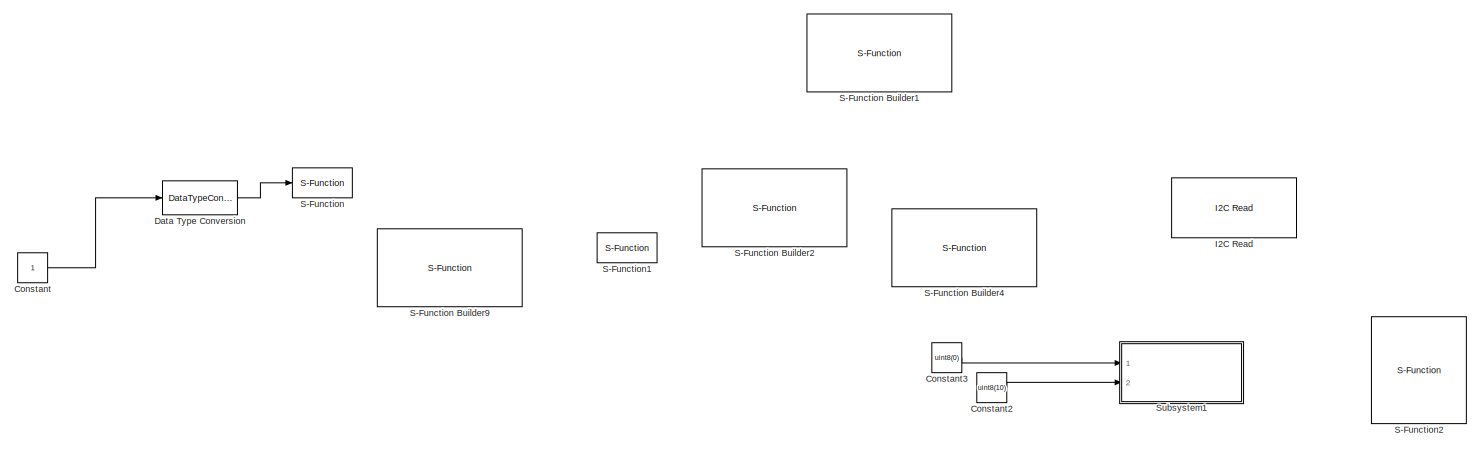
[diagram: root canvas - part 1/3, full width, top band]
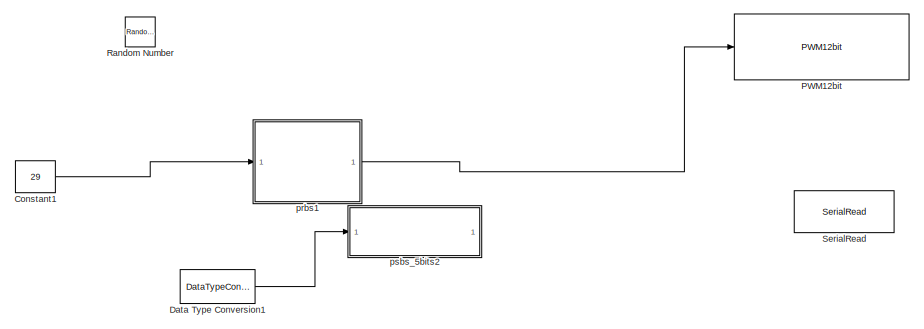
[diagram: root canvas - part 2/3, bottom left region]
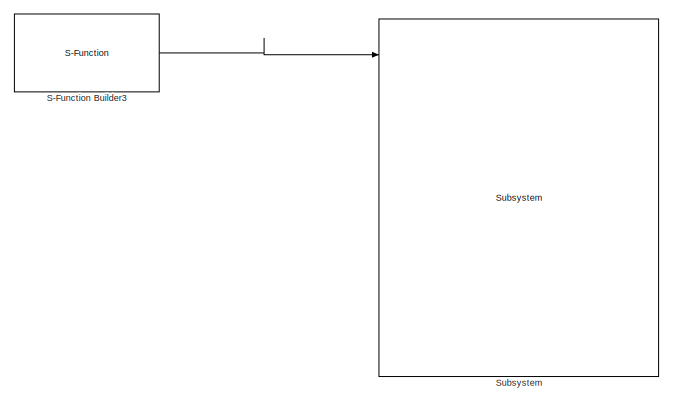
[diagram: root canvas - part 3/3, bottom right region]
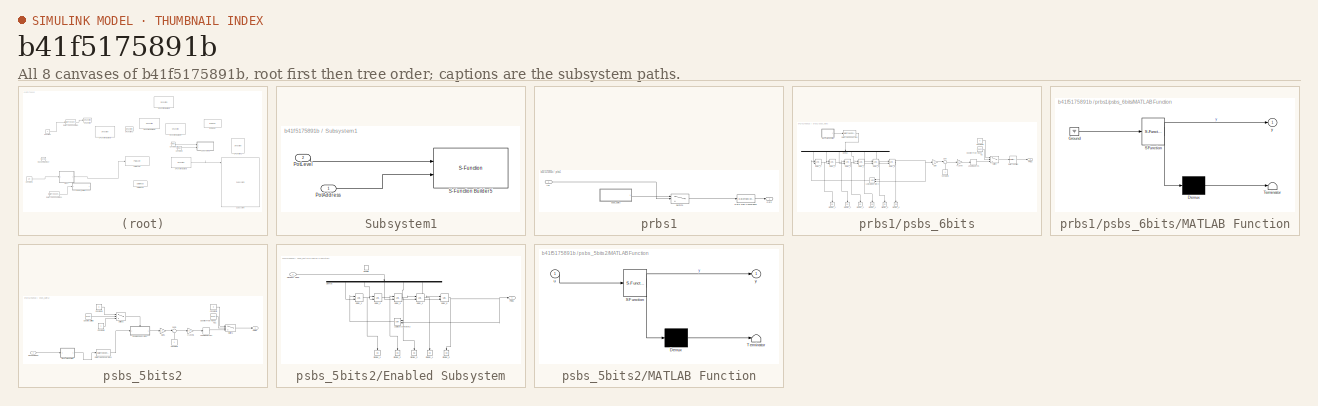
[diagram: thumbnail index - all 8 canvases of the model, root first then tree order]
MODEL slx_b41f5175891b
KIND model
CONFIG AbsTol = auto
CONFIG EnableMultiTasking = on
CONFIG FixedStep = 0.1
CONFIG MaxStep = auto
CONFIG MinStep = auto
CONFIG RelTol = 1e-3
CONFIG SampleTimeConstraint = Unconstrained
CONFIG Solver = FixedStepAuto
CONFIG SolverName = FixedStepAuto
CONFIG StartTime = 0.0
CONFIG StopTime = inf
BLOCK [Constant] Constant
  Commented = on
BLOCK [Constant] Constant1
  OutDataTypeStr = double
  SampleTime = 0.1
  Value = 29
BLOCK [Constant] Constant2
  Value = uint8(10)
BLOCK [Constant] Constant3
  Value = uint8(0)
BLOCK [DataTypeConversion] Data Type Conversion
  Commented = on
  RndMeth = Floor
  SaturateOnIntegerOverflow = off
BLOCK [DataTypeConversion] Data Type Conversion1
  Commented = through
  OutDataTypeStr = uint16
  RndMeth = Floor
  SaturateOnIntegerOverflow = off
BLOCK [Reference] I2C Read  REF=arduinolib/I2C Read
  Commented = on
  Ports = [0, 1]
  SourceBlock = arduinolib/I2C Read
  SourceType = I2C Read
BLOCK [Reference] PWM12bit  REF=EEE481Arduino/PWM12bit
  Commented = on
  Ports = [1]
  SourceBlock = EEE481Arduino/PWM12bit
BLOCK [RandomNumber] Random Number
  Commented = on
  SampleTime = 0.1
BLOCK [S-Function] S-Function
  Commented = on
  EnableBusSupport = off
  FunctionName = pHSensor
  Parameters = int8(1)
  Ports = [1]
  SFcnIsStateOwnerBlock = off
  SFunctionDeploymentMode = off
  SFunctionModules = pHSensor_wrapper
BLOCK [S-Function] S-Function Builder1
  Commented = on
  CopyFcn = set_param(gcbh,'LinkStatus','none')
  EnableBusSupport = off
  FunctionName = PWMRead
  InitFcn = try, set_param(gcb,'FunctionName','PWMRead'), end
  OpenFcn = sfunctionwizard(gcbh)
  Ports = [0, 1]
  PreSaveFcn = try, set_param(gcb,'FunctionName','PWMRead'), end
  SFcnIsStateOwnerBlock = off
  SFunctionDeploymentMode = off
  SFunctionModules = PWMRead_wrapper
BLOCK [S-Function] S-Function Builder2
  Commented = on
  CopyFcn = set_param(gcbh,'LinkStatus','none')
  EnableBusSupport = off
  FunctionName = pHRead
  InitFcn = try, set_param(gcb,'FunctionName','pHRead'), end
  OpenFcn = sfunctionwizard(gcbh)
  Parameters = int8(1)
  Ports = [2, 1]
  PreSaveFcn = try, set_param(gcb,'FunctionName','pHRead'), end
  SFcnIsStateOwnerBlock = off
  SFunctionDeploymentMode = off
  SFunctionModules = pHRead_wrapper
BLOCK [S-Function] S-Function Builder3
  Commented = on
  CopyFcn = set_param(gcbh,'LinkStatus','none')
  EnableBusSupport = off
  FunctionName = PWMRead
  InitFcn = try, set_param(gcb,'FunctionName','PWMRead'), end
  OpenFcn = sfunctionwizard(gcbh)
  Ports = [0, 1]
  PreSaveFcn = try, set_param(gcb,'FunctionName','PWMRead'), end
  SFcnIsStateOwnerBlock = off
  SFunctionDeploymentMode = off
  SFunctionModules = PWMRead_wrapper
BLOCK [S-Function] S-Function Builder4
  Commented = on
  CopyFcn = set_param(gcbh,'LinkStatus','none')
  EnableBusSupport = off
  FunctionName = SerialOut
  InitFcn = try, set_param(gcb,'FunctionName','SerialOut'), end
  OpenFcn = sfunctionwizard(gcbh)
  Parameters = int8(0)
  Ports = [1]
  PreSaveFcn = try, set_param(gcb,'FunctionName','SerialOut'), end
  SFcnIsStateOwnerBlock = off
  SFunctionDeploymentMode = off
  SFunctionModules = SerialOut_wrapper
BLOCK [S-Function] S-Function Builder9
  Commented = on
  CopyFcn = set_param(gcbh,'LinkStatus','none')
  EnableBusSupport = off
  FunctionName = DACI2CTest
  InitFcn = try, set_param(gcb,'FunctionName','DACI2CTest'), end
  OpenFcn = sfunctionwizard(gcbh)
  Ports = []
  PreSaveFcn = try, set_param(gcb,'FunctionName','DACI2CTest'), end
  SFcnIsStateOwnerBlock = off
  SFunctionDeploymentMode = off
  SFunctionModules = DACI2CTest_wrapper
BLOCK [S-Function] S-Function1
  Commented = on
  EnableBusSupport = off
  FunctionName = DACI2C
  Ports = []
  SFcnIsStateOwnerBlock = off
  SFunctionDeploymentMode = off
  SFunctionModules = DACI2C_wrapper
BLOCK [S-Function] S-Function2
  Commented = on
  EnableBusSupport = off
  FunctionName = SPIOut1
  Parameters = int8(7),int8(53)
  Ports = [2]
  SFcnIsStateOwnerBlock = off
  SFunctionDeploymentMode = off
  SFunctionModules = SPIOut1_wrapper
BLOCK [Reference] SerialRead  REF=EEE481Arduino/SerialRead
  Commented = on
  Ports = [0, 1]
  SourceBlock = EEE481Arduino/SerialRead
BLOCK [Reference] Subsystem  REF=EEE481Arduino/Subsystem
  Commented = on
  Ports = [9, 3]
  SourceBlock = EEE481Arduino/Subsystem
BLOCK [SubSystem] Subsystem1
  Ports = [2]
  RequestExecContextInheritance = off
  Variant = off
BLOCK [Inport] Subsystem1/PotAddress
  IconDisplay = Port number
BLOCK [Inport] Subsystem1/PotLevel
  IconDisplay = Port number
  Port = 2
BLOCK [S-Function] Subsystem1/S-Function Builder5
  CopyFcn = set_param(gcbh,'LinkStatus','none')
  EnableBusSupport = off
  FunctionName = SPIPot
  InitFcn = try, set_param(gcb,'FunctionName','SPIPot'), end
  OpenFcn = sfunctionwizard(gcbh)
  Parameters = int8(CS)
  Ports = [2]
  PreSaveFcn = try, set_param(gcb,'FunctionName','SPIPot'), end
  SFcnIsStateOwnerBlock = off
  SFunctionDeploymentMode = off
  SFunctionModules = SPIPot_wrapper
BLOCK [SubSystem] prbs1
  Commented = through
  Ports = [1, 1]
  RequestExecContextInheritance = off
  Variant = off
BLOCK [DataTypeConversion] prbs1/Data Type Conversion2
  OutDataTypeStr = int16
  RndMeth = Floor
  SaturateOnIntegerOverflow = off
BLOCK [Inport] prbs1/In1
  IconDisplay = Port number
BLOCK [Outport] prbs1/Out2
  IconDisplay = Port number
BLOCK [Switch] prbs1/Switch1
  Criteria = u2 > Threshold
  InputSameDT = off
  SaturateOnIntegerOverflow = off
  Threshold = 1500
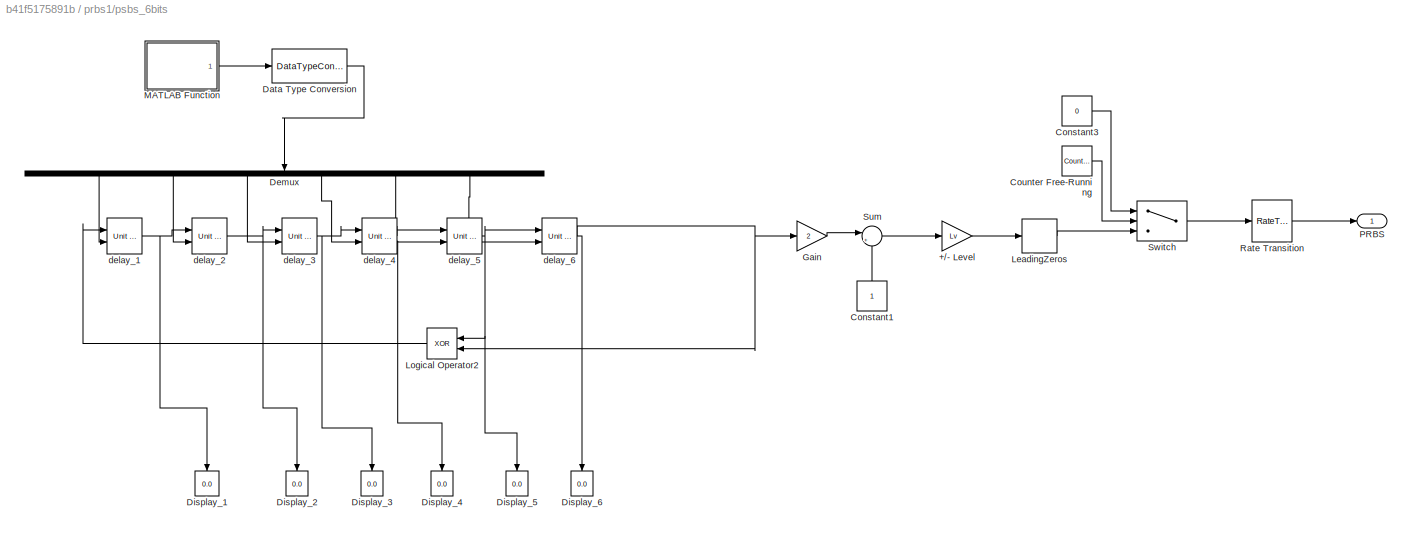
BLOCK [SubSystem] prbs1/psbs_6bits
  Ports = [0, 1]
  RequestExecContextInheritance = off
  Variant = off
BLOCK [Gain] prbs1/psbs_6bits/+//- Level
  Gain = Lv
  OutDataTypeStr = Inherit: Inherit via internal rule
  ParamDataTypeStr = Inherit: Inherit via internal rule
  SampleTime = Tsw
  SaturateOnIntegerOverflow = off
BLOCK [Constant] prbs1/psbs_6bits/Constant1
  SampleTime = Tsw
BLOCK [Constant] prbs1/psbs_6bits/Constant3
  SampleTime = Tsw
  Value = 0
BLOCK [Reference] prbs1/psbs_6bits/Counter Free-Running  REF=simulink/Sources/Counter
Free-Running
  Ports = [0, 1]
  SourceBlock = simulink/Sources/Counter\nFree-Running
  SourceType = Counter Free-Running
BLOCK [DataTypeConversion] prbs1/psbs_6bits/Data Type Conversion
  OutDataTypeStr = int16
  RndMeth = Floor
  SampleTime = Tsw
  SaturateOnIntegerOverflow = off
BLOCK [Demux] prbs1/psbs_6bits/Demux
  DisplayOption = bar
  Outputs = 6
  Ports = [1, 6]
BLOCK [Display] prbs1/psbs_6bits/Display_1
  Decimation = 1
  Ports = [1]
BLOCK [Display] prbs1/psbs_6bits/Display_2
  Decimation = 1
  Ports = [1]
BLOCK [Display] prbs1/psbs_6bits/Display_3
  Decimation = 1
  Ports = [1]
BLOCK [Display] prbs1/psbs_6bits/Display_4
  Decimation = 1
  Ports = [1]
BLOCK [Display] prbs1/psbs_6bits/Display_5
  Decimation = 1
  Ports = [1]
BLOCK [Display] prbs1/psbs_6bits/Display_6
  Decimation = 1
  Ports = [1]
BLOCK [Gain] prbs1/psbs_6bits/Gain
  Gain = 2
  OutDataTypeStr = Inherit: Inherit via internal rule
  ParamDataTypeStr = Inherit: Inherit via internal rule
  SampleTime = Tsw
  SaturateOnIntegerOverflow = off
BLOCK [Delay] prbs1/psbs_6bits/LeadingZeros
  DelayLength = Lz/Tsw
  InitialCondition = 0
  InputPortMap = u0
  Ports = [1, 1]
  SampleTime = Tsw
BLOCK [Logic] prbs1/psbs_6bits/Logical Operator2
  AllPortsSameDT = off
  Operator = XOR
  OutDataTypeStr = fixdt(1,16)
  Ports = [2, 1]
  SampleTime = Tsw
BLOCK [SubSystem] prbs1/psbs_6bits/MATLAB Function
  ErrorFcn = Stateflow.Translate.translate
  PermitHierarchicalResolution = ExplicitOnly
  Ports = [0, 1]
  RequestExecContextInheritance = off
  SFBlockType = MATLAB Function
  TreatAsAtomicUnit = on
  Variant = off
BLOCK [Demux] prbs1/psbs_6bits/MATLAB Function/ Demux 
  Outputs = 1
  Ports = [1, 1]
BLOCK [Ground] prbs1/psbs_6bits/MATLAB Function/ Ground 
BLOCK [S-Function] prbs1/psbs_6bits/MATLAB Function/ SFunction 
  EnableBusSupport = on
  FunctionName = sf_sfun
  PortCounts = [1 2]
  Ports = [1, 2]
  SFcnIsStateOwnerBlock = off
  SFunctionDeploymentMode = off
  Tag = Stateflow S-Function SPIPOTTest 4
BLOCK [Terminator] prbs1/psbs_6bits/MATLAB Function/ Terminator 
BLOCK [Outport] prbs1/psbs_6bits/MATLAB Function/y
  IconDisplay = Port number
BLOCK [Outport] prbs1/psbs_6bits/PRBS
  IconDisplay = Port number
BLOCK [RateTransition] prbs1/psbs_6bits/Rate Transition
  OutPortSampleTime = T
BLOCK [Sum] prbs1/psbs_6bits/Sum
  IconShape = round
  InputSameDT = off
  Inputs = |+-
  OutDataTypeStr = Inherit: Inherit via internal rule
  Ports = [2, 1]
  SampleTime = Tsw
  SaturateOnIntegerOverflow = off
BLOCK [Switch] prbs1/psbs_6bits/Switch
  InputSameDT = off
  SampleTime = Tsw
  SaturateOnIntegerOverflow = off
  Threshold = (Nc*(2^6-1))+Lz/Tsw
BLOCK [Reference] prbs1/psbs_6bits/delay_1  REF=simulink_need_slupdate/Unit Delay
External IC
  Ports = [2, 1]
  SourceBlock = simulink_need_slupdate/Unit Delay\nExternal IC
  SourceType = Unit Delay External Initial Condition
BLOCK [Reference] prbs1/psbs_6bits/delay_2  REF=simulink_need_slupdate/Unit Delay
External IC
  Ports = [2, 1]
  SourceBlock = simulink_need_slupdate/Unit Delay\nExternal IC
  SourceType = Unit Delay External Initial Condition
BLOCK [Reference] prbs1/psbs_6bits/delay_3  REF=simulink_need_slupdate/Unit Delay
External IC
  Ports = [2, 1]
  SourceBlock = simulink_need_slupdate/Unit Delay\nExternal IC
  SourceType = Unit Delay External Initial Condition
BLOCK [Reference] prbs1/psbs_6bits/delay_4  REF=simulink_need_slupdate/Unit Delay
External IC
  Ports = [2, 1]
  SourceBlock = simulink_need_slupdate/Unit Delay\nExternal IC
  SourceType = Unit Delay External Initial Condition
BLOCK [Reference] prbs1/psbs_6bits/delay_5  REF=simulink_need_slupdate/Unit Delay
External IC
  Ports = [2, 1]
  SourceBlock = simulink_need_slupdate/Unit Delay\nExternal IC
  SourceType = Unit Delay External Initial Condition
BLOCK [Reference] prbs1/psbs_6bits/delay_6  REF=simulink_need_slupdate/Unit Delay
External IC
  Ports = [2, 1]
  SourceBlock = simulink_need_slupdate/Unit Delay\nExternal IC
  SourceType = Unit Delay External Initial Condition
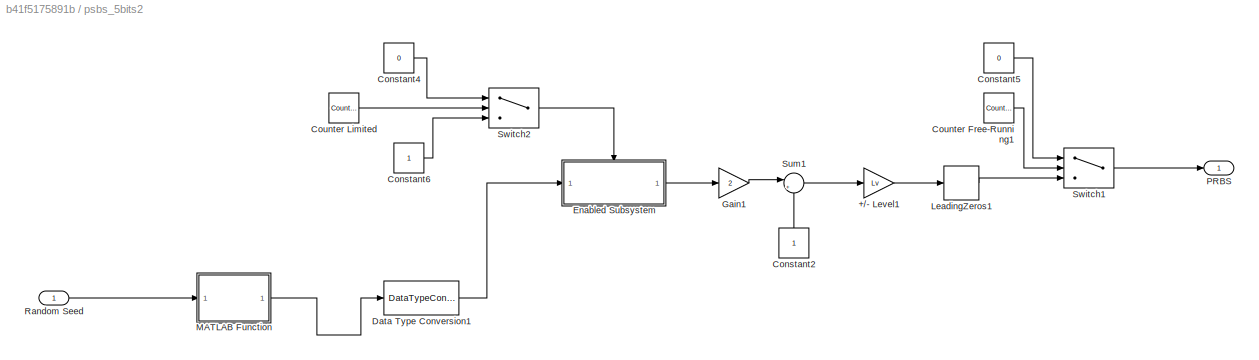
BLOCK [SubSystem] psbs_5bits2
  Commented = through
  Ports = [1, 1]
  RequestExecContextInheritance = off
  Variant = off
BLOCK [Gain] psbs_5bits2/+//- Level1
  Gain = Lv
  OutDataTypeStr = Inherit: Inherit via internal rule
  ParamDataTypeStr = Inherit: Inherit via internal rule
  SampleTime = T
  SaturateOnIntegerOverflow = off
BLOCK [Constant] psbs_5bits2/Constant2
  SampleTime = T
BLOCK [Constant] psbs_5bits2/Constant4
  SampleTime = T
  Value = 0
BLOCK [Constant] psbs_5bits2/Constant5
  SampleTime = T
  Value = 0
BLOCK [Constant] psbs_5bits2/Constant6
  SampleTime = T
BLOCK [Reference] psbs_5bits2/Counter Free-Running1  REF=simulink/Sources/Counter
Free-Running
  Ports = [0, 1]
  SourceBlock = simulink/Sources/Counter\nFree-Running
  SourceType = Counter Free-Running
BLOCK [Reference] psbs_5bits2/Counter Limited  REF=simulink/Sources/Counter
Limited
  Ports = [0, 1]
  SourceBlock = simulink/Sources/Counter\nLimited
  SourceType = Counter Limited
BLOCK [DataTypeConversion] psbs_5bits2/Data Type Conversion1
  OutDataTypeStr = int16
  RndMeth = Floor
  SaturateOnIntegerOverflow = off
BLOCK [SubSystem] psbs_5bits2/Enabled Subsystem
  Ports = [1, 1, 1]
  RequestExecContextInheritance = off
  TreatAsAtomicUnit = on
  Variant = off
BLOCK [Demux] psbs_5bits2/Enabled Subsystem/Demux
  DisplayOption = bar
  Outputs = 5
  Ports = [1, 5]
BLOCK [Display] psbs_5bits2/Enabled Subsystem/Display_1
  Decimation = 1
  Ports = [1]
BLOCK [Display] psbs_5bits2/Enabled Subsystem/Display_2
  Decimation = 1
  Ports = [1]
BLOCK [Display] psbs_5bits2/Enabled Subsystem/Display_3
  Decimation = 1
  Ports = [1]
BLOCK [Display] psbs_5bits2/Enabled Subsystem/Display_4
  Decimation = 1
  Ports = [1]
BLOCK [Display] psbs_5bits2/Enabled Subsystem/Display_5
  Decimation = 1
  Ports = [1]
BLOCK [EnablePort] psbs_5bits2/Enabled Subsystem/Enable
  Ports = []
BLOCK [Logic] psbs_5bits2/Enabled Subsystem/Logical Operator2
  AllPortsSameDT = off
  Operator = XOR
  OutDataTypeStr = fixdt(1,16)
  Ports = [2, 1]
  SampleTime = T
BLOCK [Outport] psbs_5bits2/Enabled Subsystem/PRBS
  IconDisplay = Port number
BLOCK [Inport] psbs_5bits2/Enabled Subsystem/Random Seed
  IconDisplay = Port number
  OutDataTypeStr = int16
BLOCK [Reference] psbs_5bits2/Enabled Subsystem/delay_1  REF=simulink_need_slupdate/Unit Delay
External IC
  Ports = [2, 1]
  SourceBlock = simulink_need_slupdate/Unit Delay\nExternal IC
  SourceType = Unit Delay External Initial Condition
BLOCK [Reference] psbs_5bits2/Enabled Subsystem/delay_2  REF=simulink_need_slupdate/Unit Delay
External IC
  Ports = [2, 1]
  SourceBlock = simulink_need_slupdate/Unit Delay\nExternal IC
  SourceType = Unit Delay External Initial Condition
BLOCK [Reference] psbs_5bits2/Enabled Subsystem/delay_3  REF=simulink_need_slupdate/Unit Delay
External IC
  Ports = [2, 1]
  SourceBlock = simulink_need_slupdate/Unit Delay\nExternal IC
  SourceType = Unit Delay External Initial Condition
BLOCK [Reference] psbs_5bits2/Enabled Subsystem/delay_4  REF=simulink_need_slupdate/Unit Delay
External IC
  Ports = [2, 1]
  SourceBlock = simulink_need_slupdate/Unit Delay\nExternal IC
  SourceType = Unit Delay External Initial Condition
BLOCK [Reference] psbs_5bits2/Enabled Subsystem/delay_5  REF=simulink_need_slupdate/Unit Delay
External IC
  Ports = [2, 1]
  SourceBlock = simulink_need_slupdate/Unit Delay\nExternal IC
  SourceType = Unit Delay External Initial Condition
BLOCK [Gain] psbs_5bits2/Gain1
  Gain = 2
  OutDataTypeStr = Inherit: Inherit via internal rule
  ParamDataTypeStr = Inherit: Inherit via internal rule
  SampleTime = T
  SaturateOnIntegerOverflow = off
BLOCK [Delay] psbs_5bits2/LeadingZeros1
  DelayLength = Lz/T
  InitialCondition = 0
  InputPortMap = u0
  Ports = [1, 1]
  SampleTime = T
BLOCK [SubSystem] psbs_5bits2/MATLAB Function
  ErrorFcn = Stateflow.Translate.translate
  PermitHierarchicalResolution = ExplicitOnly
  Ports = [1, 1]
  RequestExecContextInheritance = off
  SFBlockType = MATLAB Function
  TreatAsAtomicUnit = on
  Variant = off
BLOCK [Demux] psbs_5bits2/MATLAB Function/ Demux 
  Outputs = 1
  Ports = [1, 1]
BLOCK [S-Function] psbs_5bits2/MATLAB Function/ SFunction 
  EnableBusSupport = on
  FunctionName = sf_sfun
  PortCounts = [1 2]
  Ports = [1, 2]
  SFcnIsStateOwnerBlock = off
  SFunctionDeploymentMode = off
  Tag = Stateflow S-Function SPIPOTTest 2
BLOCK [Terminator] psbs_5bits2/MATLAB Function/ Terminator 
BLOCK [Inport] psbs_5bits2/MATLAB Function/u
  IconDisplay = Port number
BLOCK [Outport] psbs_5bits2/MATLAB Function/y
  IconDisplay = Port number
BLOCK [Outport] psbs_5bits2/PRBS
  IconDisplay = Port number
BLOCK [Inport] psbs_5bits2/Random Seed
  IconDisplay = Port number
  OutDataTypeStr = uint16
BLOCK [Sum] psbs_5bits2/Sum1
  IconShape = round
  InputSameDT = off
  Inputs = |+-
  OutDataTypeStr = Inherit: Inherit via internal rule
  Ports = [2, 1]
  SampleTime = T
  SaturateOnIntegerOverflow = off
BLOCK [Switch] psbs_5bits2/Switch1
  InputSameDT = off
  SampleTime = T
  SaturateOnIntegerOverflow = off
  Threshold = (Lz+(((Nc*(2^5-1))*Tsw)/T))
BLOCK [Switch] psbs_5bits2/Switch2
  Criteria = u2 ~= 0
  InputSameDT = off
  SampleTime = T
  SaturateOnIntegerOverflow = off
  Threshold = Tsw/T
LINE Constant1:1 -> prbs1:1
LINE Constant2:1 -> Subsystem1:2
LINE Constant3:1 -> Subsystem1:1
LINE Constant:1 -> Data Type Conversion:1
LINE Data Type Conversion1:1 -> psbs_5bits2:1
LINE Data Type Conversion:1 -> S-Function:1
LINE S-Function Builder3:1 -> Subsystem:1
LINE Subsystem1/PotAddress:1 -> Subsystem1/S-Function Builder5:2
LINE Subsystem1/PotLevel:1 -> Subsystem1/S-Function Builder5:1
LINE prbs1/Data Type Conversion2:1 -> prbs1/Out2:1
LINE prbs1/In1:1 -> prbs1/Switch1:2
LINE prbs1/Switch1:1 -> prbs1/Data Type Conversion2:1
LINE prbs1/psbs_6bits/+//- Level:1 -> prbs1/psbs_6bits/LeadingZeros:1
LINE prbs1/psbs_6bits/Constant1:1 -> prbs1/psbs_6bits/Sum:2
LINE prbs1/psbs_6bits/Constant3:1 -> prbs1/psbs_6bits/Switch:1
LINE prbs1/psbs_6bits/Counter Free-Running:1 -> prbs1/psbs_6bits/Switch:2
LINE prbs1/psbs_6bits/Data Type Conversion:1 -> prbs1/psbs_6bits/Demux:1
LINE prbs1/psbs_6bits/Demux:1 -> prbs1/psbs_6bits/delay_1:2
LINE prbs1/psbs_6bits/Demux:2 -> prbs1/psbs_6bits/delay_2:2
LINE prbs1/psbs_6bits/Demux:3 -> prbs1/psbs_6bits/delay_3:2
LINE prbs1/psbs_6bits/Demux:4 -> prbs1/psbs_6bits/delay_4:2
NET prbs1/psbs_6bits/Demux:5 -> prbs1/psbs_6bits/Display_4:1, prbs1/psbs_6bits/delay_5:2
LINE prbs1/psbs_6bits/Demux:6 -> prbs1/psbs_6bits/delay_6:2
LINE prbs1/psbs_6bits/Gain:1 -> prbs1/psbs_6bits/Sum:1
LINE prbs1/psbs_6bits/LeadingZeros:1 -> prbs1/psbs_6bits/Switch:3
LINE prbs1/psbs_6bits/Logical Operator2:1 -> prbs1/psbs_6bits/delay_1:1
LINE prbs1/psbs_6bits/MATLAB Function:1 -> prbs1/psbs_6bits/Data Type Conversion:1
LINE prbs1/psbs_6bits/Rate Transition:1 -> prbs1/psbs_6bits/PRBS:1
LINE prbs1/psbs_6bits/Sum:1 -> prbs1/psbs_6bits/+//- Level:1
LINE prbs1/psbs_6bits/Switch:1 -> prbs1/psbs_6bits/Rate Transition:1
NET prbs1/psbs_6bits/delay_1:1 -> prbs1/psbs_6bits/Display_1:1, prbs1/psbs_6bits/delay_2:1
NET prbs1/psbs_6bits/delay_2:1 -> prbs1/psbs_6bits/Display_2:1, prbs1/psbs_6bits/delay_3:1
NET prbs1/psbs_6bits/delay_3:1 -> prbs1/psbs_6bits/Display_3:1, prbs1/psbs_6bits/delay_4:1
LINE prbs1/psbs_6bits/delay_4:1 -> prbs1/psbs_6bits/delay_5:1
NET prbs1/psbs_6bits/delay_5:1 -> prbs1/psbs_6bits/Display_5:1, prbs1/psbs_6bits/Logical Operator2:1, prbs1/psbs_6bits/delay_6:1
NET prbs1/psbs_6bits/delay_6:1 -> prbs1/psbs_6bits/Display_6:1, prbs1/psbs_6bits/Gain:1, prbs1/psbs_6bits/Logical Operator2:2
LINE prbs1/psbs_6bits:1 -> prbs1/Switch1:1
LINE prbs1:1 -> PWM12bit:1
LINE psbs_5bits2/+//- Level1:1 -> psbs_5bits2/LeadingZeros1:1
LINE psbs_5bits2/Constant2:1 -> psbs_5bits2/Sum1:2
LINE psbs_5bits2/Constant4:1 -> psbs_5bits2/Switch2:1
LINE psbs_5bits2/Constant5:1 -> psbs_5bits2/Switch1:1
LINE psbs_5bits2/Constant6:1 -> psbs_5bits2/Switch2:3
LINE psbs_5bits2/Counter Free-Running1:1 -> psbs_5bits2/Switch1:2
LINE psbs_5bits2/Counter Limited:1 -> psbs_5bits2/Switch2:2
LINE psbs_5bits2/Data Type Conversion1:1 -> psbs_5bits2/Enabled Subsystem:1
LINE psbs_5bits2/Enabled Subsystem/Demux:1 -> psbs_5bits2/Enabled Subsystem/delay_1:2
LINE psbs_5bits2/Enabled Subsystem/Demux:2 -> psbs_5bits2/Enabled Subsystem/delay_2:2
LINE psbs_5bits2/Enabled Subsystem/Demux:3 -> psbs_5bits2/Enabled Subsystem/delay_3:2
LINE psbs_5bits2/Enabled Subsystem/Demux:4 -> psbs_5bits2/Enabled Subsystem/delay_4:2
LINE psbs_5bits2/Enabled Subsystem/Demux:5 -> psbs_5bits2/Enabled Subsystem/delay_5:2
LINE psbs_5bits2/Enabled Subsystem/Logical Operator2:1 -> psbs_5bits2/Enabled Subsystem/delay_1:1
LINE psbs_5bits2/Enabled Subsystem/Random Seed:1 -> psbs_5bits2/Enabled Subsystem/Demux:1
NET psbs_5bits2/Enabled Subsystem/delay_1:1 -> psbs_5bits2/Enabled Subsystem/Display_1:1, psbs_5bits2/Enabled Subsystem/delay_2:1
NET psbs_5bits2/Enabled Subsystem/delay_2:1 -> psbs_5bits2/Enabled Subsystem/Display_2:1, psbs_5bits2/Enabled Subsystem/delay_3:1
NET psbs_5bits2/Enabled Subsystem/delay_3:1 -> psbs_5bits2/Enabled Subsystem/Display_3:1, psbs_5bits2/Enabled Subsystem/Logical Operator2:1, psbs_5bits2/Enabled Subsystem/delay_4:1
NET psbs_5bits2/Enabled Subsystem/delay_4:1 -> psbs_5bits2/Enabled Subsystem/Display_4:1, psbs_5bits2/Enabled Subsystem/delay_5:1
NET psbs_5bits2/Enabled Subsystem/delay_5:1 -> psbs_5bits2/Enabled Subsystem/Display_5:1, psbs_5bits2/Enabled Subsystem/Logical Operator2:2, psbs_5bits2/Enabled Subsystem/PRBS:1
LINE psbs_5bits2/Enabled Subsystem:1 -> psbs_5bits2/Gain1:1
LINE psbs_5bits2/Gain1:1 -> psbs_5bits2/Sum1:1
LINE psbs_5bits2/LeadingZeros1:1 -> psbs_5bits2/Switch1:3
LINE psbs_5bits2/MATLAB Function:1 -> psbs_5bits2/Data Type Conversion1:1
LINE psbs_5bits2/Random Seed:1 -> psbs_5bits2/MATLAB Function:1
LINE psbs_5bits2/Sum1:1 -> psbs_5bits2/+//- Level1:1
LINE psbs_5bits2/Switch1:1 -> psbs_5bits2/PRBS:1
LINE psbs_5bits2/Switch2:1 -> psbs_5bits2/Enabled Subsystem:enable
note: NET lines group one-source signal fan-out (src -> all destinations, sorted); 1:1 wires keep LINE
CHART psbs_5bits2/MATLAB Function states=1 transitions=1
  STATE_LABEL 'eML_blk_kernel()'
  STATE_LABEL 'SCRIPT:\nfunction y = fcn(u)\n%#codegen\ny = zeros(5,1);\n% s = de2bi(u,16);\ns = dec2bin(u,16);\ny(1) = s(end-4)-48;\ny(2) = s(end-3)-48;\ny(3) = s(end-2)-48;\ny(4) = s(end-1)-48;\ny(5) = s(end)-48;\n\n'
CHART prbs1/psbs_6bits/MATLAB Function states=1 transitions=1
  STATE_LABEL 'eML_blk_kernel()'
  STATE_LABEL "SCRIPT:\nfunction y = fcn()\n%#codegen\ny = zeros(6,1);\n% % s = de2bi(u,16);\n% s = dec2bin(u,16);\ns = ['1','1','0','1','0','0','1'];\ny(1) = s(end-1)-48;\ny(2) = s(end-2)-48;\ny(3) = s(end-3)-48;\ny(4) = s(end-4)-48;\ny(5) = s(end-5)-48;\ny(6) = s(end-6)-48;\n"
